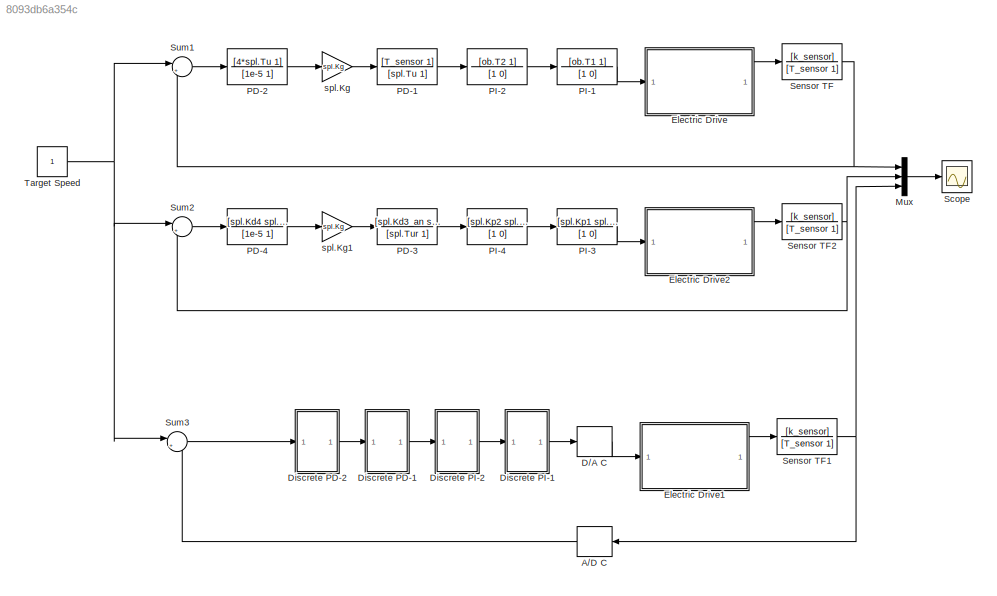
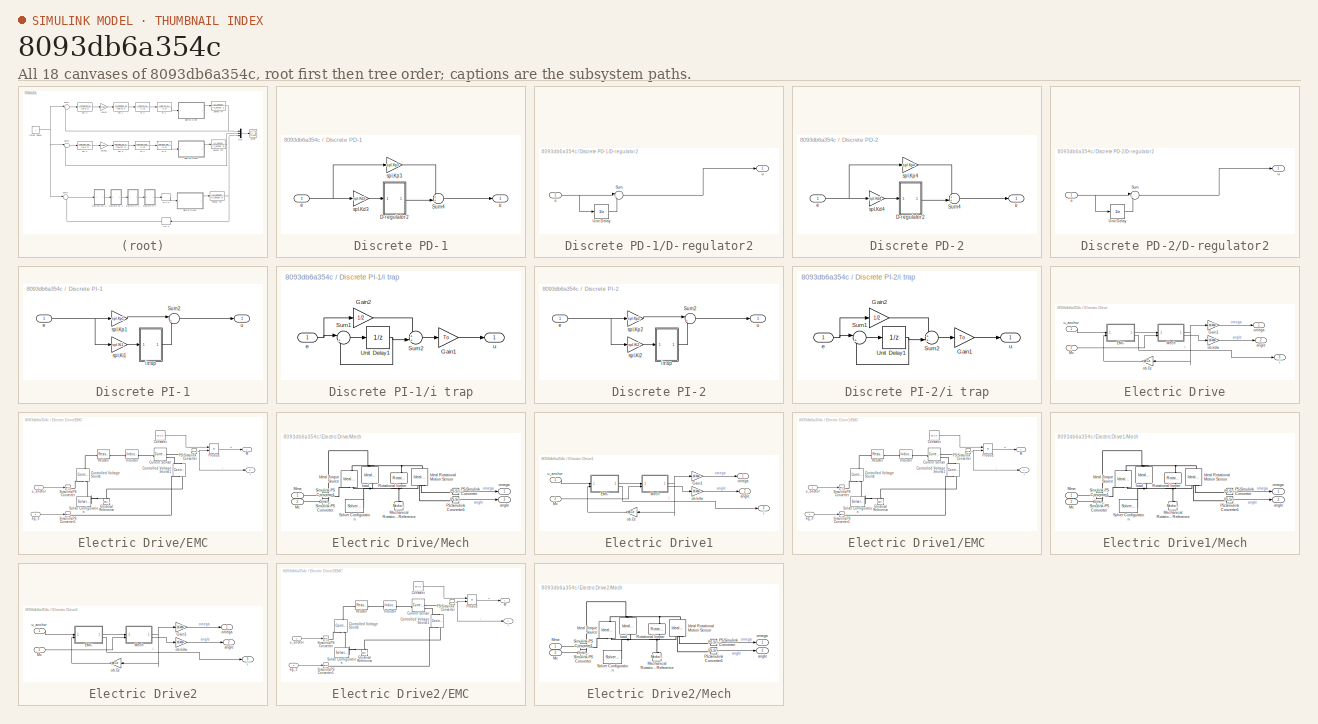
[diagram: thumbnail index - all 18 canvases of the model, root first then tree order]
MODEL slx_8093db6a354c
KIND model
CONFIG AbsTol = auto
CONFIG EnableMultiTasking = off
CONFIG FixedStep = To/100
CONFIG MaxStep = auto
CONFIG MinStep = auto
CONFIG RelTol = 1e-3
CONFIG SampleTimeConstraint = Unconstrained
CONFIG SolverName = ode3
CONFIG StartTime = 0.0
CONFIG StopTime = Tmdl
BLOCK [ZeroOrderHold] A//D C
  NameLocation = top
  SampleTime = To
BLOCK [ZeroOrderHold] D//A C
  SampleTime = To
BLOCK [SubSystem] Discrete PD-1
BLOCK [SubSystem] Discrete PD-1/D-regulator2
BLOCK [Sum] Discrete PD-1/D-regulator2/Sum
  Inputs = |+-
BLOCK [UnitDelay] Discrete PD-1/D-regulator2/Unit Delay
  HasFrameUpgradeWarning = on
  SampleTime = To
BLOCK [Inport] Discrete PD-1/D-regulator2/e
BLOCK [Outport] Discrete PD-1/D-regulator2/u
BLOCK [Sum] Discrete PD-1/Sum4
  Inputs = ++|
BLOCK [Inport] Discrete PD-1/e
BLOCK [Gain] Discrete PD-1/spl.Kd3
  Gain = spl.Kd3
BLOCK [Gain] Discrete PD-1/spl.Kp3
  Gain = spl.Kp3
BLOCK [Outport] Discrete PD-1/u
BLOCK [SubSystem] Discrete PD-2
BLOCK [SubSystem] Discrete PD-2/D-regulator2
BLOCK [Sum] Discrete PD-2/D-regulator2/Sum
  Inputs = |+-
BLOCK [UnitDelay] Discrete PD-2/D-regulator2/Unit Delay
  HasFrameUpgradeWarning = on
  SampleTime = To
BLOCK [Inport] Discrete PD-2/D-regulator2/e
BLOCK [Outport] Discrete PD-2/D-regulator2/u
BLOCK [Sum] Discrete PD-2/Sum4
  Inputs = ++|
BLOCK [Inport] Discrete PD-2/e
BLOCK [Gain] Discrete PD-2/spl.Kd4
  Gain = spl.Kd4
BLOCK [Gain] Discrete PD-2/spl.Kp4
  Gain = spl.Kp4
BLOCK [Outport] Discrete PD-2/u
BLOCK [SubSystem] Discrete PI-1
BLOCK [Sum] Discrete PI-1/Sum2
  Inputs = |++
BLOCK [Inport] Discrete PI-1/e
BLOCK [SubSystem] Discrete PI-1/i trap
BLOCK [Gain] Discrete PI-1/i trap/Gain1
  Gain = To
BLOCK [Gain] Discrete PI-1/i trap/Gain2
  Gain = 1/2
BLOCK [Sum] Discrete PI-1/i trap/Sum1
  Inputs = |++
BLOCK [Sum] Discrete PI-1/i trap/Sum2
  Inputs = ++|
BLOCK [UnitDelay] Discrete PI-1/i trap/Unit Delay1
  HasFrameUpgradeWarning = on
  SampleTime = To
BLOCK [Inport] Discrete PI-1/i trap/e
BLOCK [Outport] Discrete PI-1/i trap/u
BLOCK [Gain] Discrete PI-1/spl.Ki1
  Gain = spl.Ki1
BLOCK [Gain] Discrete PI-1/spl.Kp1
  Gain = spl.Kp1
BLOCK [Outport] Discrete PI-1/u
BLOCK [SubSystem] Discrete PI-2
BLOCK [Sum] Discrete PI-2/Sum2
  Inputs = |++
BLOCK [Inport] Discrete PI-2/e
BLOCK [SubSystem] Discrete PI-2/i trap
BLOCK [Gain] Discrete PI-2/i trap/Gain1
  Gain = To
BLOCK [Gain] Discrete PI-2/i trap/Gain2
  Gain = 1/2
BLOCK [Sum] Discrete PI-2/i trap/Sum1
  Inputs = |++
BLOCK [Sum] Discrete PI-2/i trap/Sum2
  Inputs = ++|
BLOCK [UnitDelay] Discrete PI-2/i trap/Unit Delay1
  HasFrameUpgradeWarning = on
  SampleTime = To
BLOCK [Inport] Discrete PI-2/i trap/e
BLOCK [Outport] Discrete PI-2/i trap/u
BLOCK [Gain] Discrete PI-2/spl.Ki2
  Gain = spl.Ki2
BLOCK [Gain] Discrete PI-2/spl.Kp2
  Gain = spl.Kp2
BLOCK [Outport] Discrete PI-2/u
BLOCK [SubSystem] Electric Drive
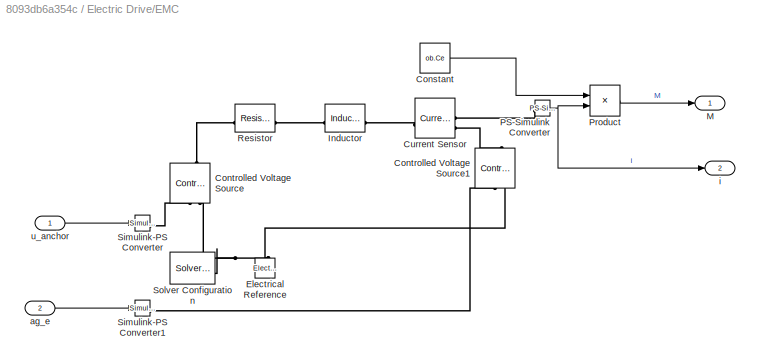
BLOCK [SubSystem] Electric Drive/EMC
BLOCK [Constant] Electric Drive/EMC/Constant
  Value = ob.Ce
BLOCK [Reference] Electric Drive/EMC/Controlled Voltage Source  REF=fl_lib/Electrical/Electrical Sources/Controlled Voltage
Source
  NameLocation = right
  SourceBlock = fl_lib/Electrical/Electrical Sources/Controlled Voltage\nSource
  SourceType = Controlled Voltage\nSource
BLOCK [Reference] Electric Drive/EMC/Controlled Voltage Source1  REF=fl_lib/Electrical/Electrical Sources/Controlled Voltage
Source
  NameLocation = right
  SourceBlock = fl_lib/Electrical/Electrical Sources/Controlled Voltage\nSource
  SourceType = Controlled Voltage\nSource
BLOCK [Reference] Electric Drive/EMC/Current Sensor  REF=fl_lib/Electrical/Electrical Sensors/Current Sensor
  SourceBlock = fl_lib/Electrical/Electrical Sensors/Current Sensor
  SourceType = Current Sensor
BLOCK [Reference] Electric Drive/EMC/Electrical Reference  REF=fl_lib/Electrical/Electrical Elements/Electrical Reference
  NameLocation = right
  SourceBlock = fl_lib/Electrical/Electrical Elements/Electrical Reference
  SourceType = Electrical Reference
BLOCK [Reference] Electric Drive/EMC/Inductor  REF=fl_lib/Electrical/Electrical Elements/Inductor
  SourceBlock = fl_lib/Electrical/Electrical Elements/Inductor
  SourceType = Inductor
BLOCK [Outport] Electric Drive/EMC/M
BLOCK [Reference] Electric Drive/EMC/PS-Simulink Converter  REF=nesl_utility/PS-Simulink
Converter
  SourceBlock = nesl_utility/PS-Simulink\nConverter
  SourceType = PS-Simulink\nConverter
BLOCK [Product] Electric Drive/EMC/Product
BLOCK [Reference] Electric Drive/EMC/Resistor  REF=fl_lib/Electrical/Electrical Elements/Resistor
  SourceBlock = fl_lib/Electrical/Electrical Elements/Resistor
  SourceType = Resistor
BLOCK [Reference] Electric Drive/EMC/Simulink-PS Converter  REF=nesl_utility/Simulink-PS
Converter
  SourceBlock = nesl_utility/Simulink-PS\nConverter
  SourceType = Simulink-PS\nConverter
BLOCK [Reference] Electric Drive/EMC/Simulink-PS Converter1  REF=nesl_utility/Simulink-PS
Converter
  SourceBlock = nesl_utility/Simulink-PS\nConverter
  SourceType = Simulink-PS\nConverter
BLOCK [Reference] Electric Drive/EMC/Solver Configuration  REF=nesl_utility/Solver
Configuration
  SourceBlock = nesl_utility/Solver\nConfiguration
  SourceType = Solver\nConfiguration
BLOCK [Inport] Electric Drive/EMC/ag_e
  Port = 2
BLOCK [Outport] Electric Drive/EMC/i
  Port = 2
BLOCK [Inport] Electric Drive/EMC/u_anchor
BLOCK [Gain] Electric Drive/Gain1
  Gain = ob.kdw
BLOCK [Inport] Electric Drive/Mc
  Port = 2
BLOCK [SubSystem] Electric Drive/Mech
BLOCK [Reference] Electric Drive/Mech/Ideal Rotational Motion Sensor  REF=fl_lib/Mechanical/Mechanical Sensors/Ideal Rotational
Motion Sensor
  NameLocation = left
  SourceBlock = fl_lib/Mechanical/Mechanical Sensors/Ideal Rotational\nMotion Sensor
  SourceType = Ideal Rotational\nMotion Sensor
BLOCK [Reference] Electric Drive/Mech/Ideal Torque Source  REF=fl_lib/Mechanical/Mechanical Sources/Ideal Torque Source
  NameLocation = right
  SourceBlock = fl_lib/Mechanical/Mechanical Sources/Ideal Torque Source
  SourceType = Ideal Torque Source
BLOCK [Inport] Electric Drive/Mech/Mc
  Port = 2
BLOCK [Reference] Electric Drive/Mech/Mechanical Rotational Reference  REF=fl_lib/Mechanical/Rotational Elements/Mechanical
Rotational Reference
  NameLocation = right
  SourceBlock = fl_lib/Mechanical/Rotational Elements/Mechanical\nRotational Reference
  SourceType = Mechanical\nRotational Reference
BLOCK [Inport] Electric Drive/Mech/Mme
BLOCK [Reference] Electric Drive/Mech/PS-Simulink Converter  REF=nesl_utility/PS-Simulink
Converter
  SourceBlock = nesl_utility/PS-Simulink\nConverter
  SourceType = PS-Simulink\nConverter
BLOCK [Reference] Electric Drive/Mech/PS-Simulink Converter1  REF=nesl_utility/PS-Simulink
Converter
  SourceBlock = nesl_utility/PS-Simulink\nConverter
  SourceType = PS-Simulink\nConverter
BLOCK [Reference] Electric Drive/Mech/Rotational Inerter  REF=fl_lib/Mechanical/Rotational Elements/Rotational Inerter
  NameLocation = left
  SourceBlock = fl_lib/Mechanical/Rotational Elements/Rotational Inerter
  SourceType = Rotational Inerter
BLOCK [Reference] Electric Drive/Mech/Simulink-PS Converter  REF=nesl_utility/Simulink-PS
Converter
  SourceBlock = nesl_utility/Simulink-PS\nConverter
  SourceType = Simulink-PS\nConverter
BLOCK [Reference] Electric Drive/Mech/Simulink-PS Converter1  REF=nesl_utility/Simulink-PS
Converter
  SourceBlock = nesl_utility/Simulink-PS\nConverter
  SourceType = Simulink-PS\nConverter
BLOCK [Reference] Electric Drive/Mech/Solver Configuration  REF=nesl_utility/Solver
Configuration
  SourceBlock = nesl_utility/Solver\nConfiguration
  SourceType = Solver\nConfiguration
BLOCK [Outport] Electric Drive/Mech/angle
  Port = 2
BLOCK [Reference] Electric Drive/Mech/load  REF=fl_lib/Mechanical/Mechanical Sources/Ideal Torque Source
  SourceBlock = fl_lib/Mechanical/Mechanical Sources/Ideal Torque Source
  SourceType = Ideal Torque Source
BLOCK [Outport] Electric Drive/Mech/omega
BLOCK [Outport] Electric Drive/angle
  Port = 2
BLOCK [Outport] Electric Drive/i
  Port = 3
BLOCK [Gain] Electric Drive/ob.Ce
  Gain = ob.Ce
BLOCK [Gain] Electric Drive/ob.kdw
  Gain = ob.kdw
  NameLocation = top
BLOCK [Outport] Electric Drive/omega
BLOCK [Inport] Electric Drive/u_anchor
BLOCK [SubSystem] Electric Drive1
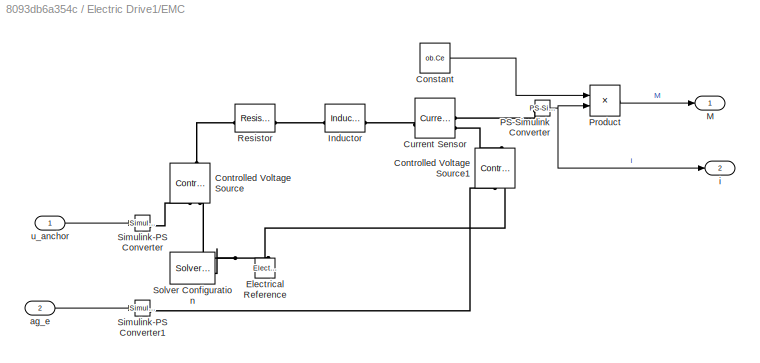
BLOCK [SubSystem] Electric Drive1/EMC
BLOCK [Constant] Electric Drive1/EMC/Constant
  Value = ob.Ce
BLOCK [Reference] Electric Drive1/EMC/Controlled Voltage Source  REF=fl_lib/Electrical/Electrical Sources/Controlled Voltage
Source
  NameLocation = right
  SourceBlock = fl_lib/Electrical/Electrical Sources/Controlled Voltage\nSource
  SourceType = Controlled Voltage\nSource
BLOCK [Reference] Electric Drive1/EMC/Controlled Voltage Source1  REF=fl_lib/Electrical/Electrical Sources/Controlled Voltage
Source
  NameLocation = right
  SourceBlock = fl_lib/Electrical/Electrical Sources/Controlled Voltage\nSource
  SourceType = Controlled Voltage\nSource
BLOCK [Reference] Electric Drive1/EMC/Current Sensor  REF=fl_lib/Electrical/Electrical Sensors/Current Sensor
  SourceBlock = fl_lib/Electrical/Electrical Sensors/Current Sensor
  SourceType = Current Sensor
BLOCK [Reference] Electric Drive1/EMC/Electrical Reference  REF=fl_lib/Electrical/Electrical Elements/Electrical Reference
  NameLocation = right
  SourceBlock = fl_lib/Electrical/Electrical Elements/Electrical Reference
  SourceType = Electrical Reference
BLOCK [Reference] Electric Drive1/EMC/Inductor  REF=fl_lib/Electrical/Electrical Elements/Inductor
  SourceBlock = fl_lib/Electrical/Electrical Elements/Inductor
  SourceType = Inductor
BLOCK [Outport] Electric Drive1/EMC/M
BLOCK [Reference] Electric Drive1/EMC/PS-Simulink Converter  REF=nesl_utility/PS-Simulink
Converter
  SourceBlock = nesl_utility/PS-Simulink\nConverter
  SourceType = PS-Simulink\nConverter
BLOCK [Product] Electric Drive1/EMC/Product
BLOCK [Reference] Electric Drive1/EMC/Resistor  REF=fl_lib/Electrical/Electrical Elements/Resistor
  SourceBlock = fl_lib/Electrical/Electrical Elements/Resistor
  SourceType = Resistor
BLOCK [Reference] Electric Drive1/EMC/Simulink-PS Converter  REF=nesl_utility/Simulink-PS
Converter
  SourceBlock = nesl_utility/Simulink-PS\nConverter
  SourceType = Simulink-PS\nConverter
BLOCK [Reference] Electric Drive1/EMC/Simulink-PS Converter1  REF=nesl_utility/Simulink-PS
Converter
  SourceBlock = nesl_utility/Simulink-PS\nConverter
  SourceType = Simulink-PS\nConverter
BLOCK [Reference] Electric Drive1/EMC/Solver Configuration  REF=nesl_utility/Solver
Configuration
  SourceBlock = nesl_utility/Solver\nConfiguration
  SourceType = Solver\nConfiguration
BLOCK [Inport] Electric Drive1/EMC/ag_e
  Port = 2
BLOCK [Outport] Electric Drive1/EMC/i
  Port = 2
BLOCK [Inport] Electric Drive1/EMC/u_anchor
BLOCK [Gain] Electric Drive1/Gain1
  Gain = ob.kdw
BLOCK [Inport] Electric Drive1/Mc
  Port = 2
BLOCK [SubSystem] Electric Drive1/Mech
BLOCK [Reference] Electric Drive1/Mech/Ideal Rotational Motion Sensor  REF=fl_lib/Mechanical/Mechanical Sensors/Ideal Rotational
Motion Sensor
  NameLocation = left
  SourceBlock = fl_lib/Mechanical/Mechanical Sensors/Ideal Rotational\nMotion Sensor
  SourceType = Ideal Rotational\nMotion Sensor
BLOCK [Reference] Electric Drive1/Mech/Ideal Torque Source  REF=fl_lib/Mechanical/Mechanical Sources/Ideal Torque Source
  NameLocation = right
  SourceBlock = fl_lib/Mechanical/Mechanical Sources/Ideal Torque Source
  SourceType = Ideal Torque Source
BLOCK [Inport] Electric Drive1/Mech/Mc
  Port = 2
BLOCK [Reference] Electric Drive1/Mech/Mechanical Rotational Reference  REF=fl_lib/Mechanical/Rotational Elements/Mechanical
Rotational Reference
  NameLocation = right
  SourceBlock = fl_lib/Mechanical/Rotational Elements/Mechanical\nRotational Reference
  SourceType = Mechanical\nRotational Reference
BLOCK [Inport] Electric Drive1/Mech/Mme
BLOCK [Reference] Electric Drive1/Mech/PS-Simulink Converter  REF=nesl_utility/PS-Simulink
Converter
  SourceBlock = nesl_utility/PS-Simulink\nConverter
  SourceType = PS-Simulink\nConverter
BLOCK [Reference] Electric Drive1/Mech/PS-Simulink Converter1  REF=nesl_utility/PS-Simulink
Converter
  SourceBlock = nesl_utility/PS-Simulink\nConverter
  SourceType = PS-Simulink\nConverter
BLOCK [Reference] Electric Drive1/Mech/Rotational Inerter  REF=fl_lib/Mechanical/Rotational Elements/Rotational Inerter
  NameLocation = left
  SourceBlock = fl_lib/Mechanical/Rotational Elements/Rotational Inerter
  SourceType = Rotational Inerter
BLOCK [Reference] Electric Drive1/Mech/Simulink-PS Converter  REF=nesl_utility/Simulink-PS
Converter
  SourceBlock = nesl_utility/Simulink-PS\nConverter
  SourceType = Simulink-PS\nConverter
BLOCK [Reference] Electric Drive1/Mech/Simulink-PS Converter1  REF=nesl_utility/Simulink-PS
Converter
  SourceBlock = nesl_utility/Simulink-PS\nConverter
  SourceType = Simulink-PS\nConverter
BLOCK [Reference] Electric Drive1/Mech/Solver Configuration  REF=nesl_utility/Solver
Configuration
  SourceBlock = nesl_utility/Solver\nConfiguration
  SourceType = Solver\nConfiguration
BLOCK [Outport] Electric Drive1/Mech/angle
  Port = 2
BLOCK [Reference] Electric Drive1/Mech/load  REF=fl_lib/Mechanical/Mechanical Sources/Ideal Torque Source
  SourceBlock = fl_lib/Mechanical/Mechanical Sources/Ideal Torque Source
  SourceType = Ideal Torque Source
BLOCK [Outport] Electric Drive1/Mech/omega
BLOCK [Outport] Electric Drive1/angle
  Port = 2
BLOCK [Outport] Electric Drive1/i
  Port = 3
BLOCK [Gain] Electric Drive1/ob.Ce
  Gain = ob.Ce
BLOCK [Gain] Electric Drive1/ob.kdw
  Gain = ob.kdw
  NameLocation = top
BLOCK [Outport] Electric Drive1/omega
BLOCK [Inport] Electric Drive1/u_anchor
BLOCK [SubSystem] Electric Drive2
  Commented = on
BLOCK [SubSystem] Electric Drive2/EMC
BLOCK [Constant] Electric Drive2/EMC/Constant
  Value = ob.Ce
BLOCK [Reference] Electric Drive2/EMC/Controlled Voltage Source  REF=fl_lib/Electrical/Electrical Sources/Controlled Voltage
Source
  NameLocation = right
  SourceBlock = fl_lib/Electrical/Electrical Sources/Controlled Voltage\nSource
  SourceType = Controlled Voltage\nSource
BLOCK [Reference] Electric Drive2/EMC/Controlled Voltage Source1  REF=fl_lib/Electrical/Electrical Sources/Controlled Voltage
Source
  NameLocation = right
  SourceBlock = fl_lib/Electrical/Electrical Sources/Controlled Voltage\nSource
  SourceType = Controlled Voltage\nSource
BLOCK [Reference] Electric Drive2/EMC/Current Sensor  REF=fl_lib/Electrical/Electrical Sensors/Current Sensor
  SourceBlock = fl_lib/Electrical/Electrical Sensors/Current Sensor
  SourceType = Current Sensor
BLOCK [Reference] Electric Drive2/EMC/Electrical Reference  REF=fl_lib/Electrical/Electrical Elements/Electrical Reference
  NameLocation = right
  SourceBlock = fl_lib/Electrical/Electrical Elements/Electrical Reference
  SourceType = Electrical Reference
BLOCK [Reference] Electric Drive2/EMC/Inductor  REF=fl_lib/Electrical/Electrical Elements/Inductor
  SourceBlock = fl_lib/Electrical/Electrical Elements/Inductor
  SourceType = Inductor
BLOCK [Outport] Electric Drive2/EMC/M
BLOCK [Reference] Electric Drive2/EMC/PS-Simulink Converter  REF=nesl_utility/PS-Simulink
Converter
  SourceBlock = nesl_utility/PS-Simulink\nConverter
  SourceType = PS-Simulink\nConverter
BLOCK [Product] Electric Drive2/EMC/Product
BLOCK [Reference] Electric Drive2/EMC/Resistor  REF=fl_lib/Electrical/Electrical Elements/Resistor
  SourceBlock = fl_lib/Electrical/Electrical Elements/Resistor
  SourceType = Resistor
BLOCK [Reference] Electric Drive2/EMC/Simulink-PS Converter  REF=nesl_utility/Simulink-PS
Converter
  SourceBlock = nesl_utility/Simulink-PS\nConverter
  SourceType = Simulink-PS\nConverter
BLOCK [Reference] Electric Drive2/EMC/Simulink-PS Converter1  REF=nesl_utility/Simulink-PS
Converter
  SourceBlock = nesl_utility/Simulink-PS\nConverter
  SourceType = Simulink-PS\nConverter
BLOCK [Reference] Electric Drive2/EMC/Solver Configuration  REF=nesl_utility/Solver
Configuration
  SourceBlock = nesl_utility/Solver\nConfiguration
  SourceType = Solver\nConfiguration
BLOCK [Inport] Electric Drive2/EMC/ag_e
  Port = 2
BLOCK [Outport] Electric Drive2/EMC/i
  Port = 2
BLOCK [Inport] Electric Drive2/EMC/u_anchor
BLOCK [Gain] Electric Drive2/Gain1
  Gain = ob.kdw
BLOCK [Inport] Electric Drive2/Mc
  Port = 2
BLOCK [SubSystem] Electric Drive2/Mech
BLOCK [Reference] Electric Drive2/Mech/Ideal Rotational Motion Sensor  REF=fl_lib/Mechanical/Mechanical Sensors/Ideal Rotational
Motion Sensor
  NameLocation = left
  SourceBlock = fl_lib/Mechanical/Mechanical Sensors/Ideal Rotational\nMotion Sensor
  SourceType = Ideal Rotational\nMotion Sensor
BLOCK [Reference] Electric Drive2/Mech/Ideal Torque Source  REF=fl_lib/Mechanical/Mechanical Sources/Ideal Torque Source
  NameLocation = right
  SourceBlock = fl_lib/Mechanical/Mechanical Sources/Ideal Torque Source
  SourceType = Ideal Torque Source
BLOCK [Inport] Electric Drive2/Mech/Mc
  Port = 2
BLOCK [Reference] Electric Drive2/Mech/Mechanical Rotational Reference  REF=fl_lib/Mechanical/Rotational Elements/Mechanical
Rotational Reference
  NameLocation = right
  SourceBlock = fl_lib/Mechanical/Rotational Elements/Mechanical\nRotational Reference
  SourceType = Mechanical\nRotational Reference
BLOCK [Inport] Electric Drive2/Mech/Mme
BLOCK [Reference] Electric Drive2/Mech/PS-Simulink Converter  REF=nesl_utility/PS-Simulink
Converter
  SourceBlock = nesl_utility/PS-Simulink\nConverter
  SourceType = PS-Simulink\nConverter
BLOCK [Reference] Electric Drive2/Mech/PS-Simulink Converter1  REF=nesl_utility/PS-Simulink
Converter
  SourceBlock = nesl_utility/PS-Simulink\nConverter
  SourceType = PS-Simulink\nConverter
BLOCK [Reference] Electric Drive2/Mech/Rotational Inerter  REF=fl_lib/Mechanical/Rotational Elements/Rotational Inerter
  NameLocation = left
  SourceBlock = fl_lib/Mechanical/Rotational Elements/Rotational Inerter
  SourceType = Rotational Inerter
BLOCK [Reference] Electric Drive2/Mech/Simulink-PS Converter  REF=nesl_utility/Simulink-PS
Converter
  SourceBlock = nesl_utility/Simulink-PS\nConverter
  SourceType = Simulink-PS\nConverter
BLOCK [Reference] Electric Drive2/Mech/Simulink-PS Converter1  REF=nesl_utility/Simulink-PS
Converter
  SourceBlock = nesl_utility/Simulink-PS\nConverter
  SourceType = Simulink-PS\nConverter
BLOCK [Reference] Electric Drive2/Mech/Solver Configuration  REF=nesl_utility/Solver
Configuration
  SourceBlock = nesl_utility/Solver\nConfiguration
  SourceType = Solver\nConfiguration
BLOCK [Outport] Electric Drive2/Mech/angle
  Port = 2
BLOCK [Reference] Electric Drive2/Mech/load  REF=fl_lib/Mechanical/Mechanical Sources/Ideal Torque Source
  SourceBlock = fl_lib/Mechanical/Mechanical Sources/Ideal Torque Source
  SourceType = Ideal Torque Source
BLOCK [Outport] Electric Drive2/Mech/omega
BLOCK [Outport] Electric Drive2/angle
  Port = 2
BLOCK [Outport] Electric Drive2/i
  Port = 3
BLOCK [Gain] Electric Drive2/ob.Ce
  Gain = ob.Ce
BLOCK [Gain] Electric Drive2/ob.kdw
  Gain = ob.kdw
  NameLocation = top
BLOCK [Outport] Electric Drive2/omega
BLOCK [Inport] Electric Drive2/u_anchor
BLOCK [Mux] Mux
  DisplayOption = bar
  Inputs = 3
BLOCK [TransferFcn] PD-1
  Denominator = [spl.Tu 1]
  Numerator = [T_sensor 1]
BLOCK [TransferFcn] PD-2
  Denominator = [1e-5 1]
  Numerator = [4*spl.Tu 1]
BLOCK [TransferFcn] PD-3
  Commented = on
  Denominator = [spl.Tur 1]
  Numerator = [spl.Kd3_an spl.Kp3]
BLOCK [TransferFcn] PD-4
  Commented = on
  Denominator = [1e-5 1]
  Numerator = [spl.Kd4 spl.Kp4]
BLOCK [TransferFcn] PI-1
  Denominator = [1 0]
  Numerator = [ob.T1 1]
BLOCK [TransferFcn] PI-2
  Denominator = [1 0]
  Numerator = [ob.T2 1]
BLOCK [TransferFcn] PI-3
  Commented = on
  Denominator = [1 0]
  Numerator = [spl.Kp1 spl.Ki1]
BLOCK [TransferFcn] PI-4
  Commented = on
  Denominator = [1 0]
  Numerator = [spl.Kp2 spl.Ki2]
BLOCK [Scope] Scope
  Floating = off
  NumInputPorts = 1
  ScopeSpecificationString = Simulink.scopes.TimeScopeBlockCfg('CurrentConfiguration', extmgr.ConfigurationSet(extmgr.Configuration('Core','General UI',true),extmgr.Configuration('Core','Source UI',true),extmgr.Configuration('Sources','WiredSimulink',true,'DataLogging',true,'DataLoggingVariableName','w','DataLoggingSaveFormat','Array'),extmgr.Configuration('Visuals','Time Domain',true,'SerializedDisplays',{struct('MinYLimReal...<+2154ch>
BLOCK [TransferFcn] Sensor TF
  Denominator = [T_sensor 1]
  Numerator = [k_sensor]
BLOCK [TransferFcn] Sensor TF1
  Denominator = [T_sensor 1]
  Numerator = [k_sensor]
BLOCK [TransferFcn] Sensor TF2
  Commented = on
  Denominator = [T_sensor 1]
  Numerator = [k_sensor]
BLOCK [Sum] Sum1
  Inputs = |+-
BLOCK [Sum] Sum2
  Commented = on
  Inputs = |+-
BLOCK [Sum] Sum3
  Inputs = |+-
BLOCK [Constant] Target Speed
BLOCK [Gain] spl.Kg
  Gain = spl.Kg
BLOCK [Gain] spl.Kg1
  Commented = on
  Gain = spl.Kg
LINE A//D C:1 -> Sum3:2
LINE D//A C:1 -> Electric Drive1:1
LINE Discrete PD-1/D-regulator2/Sum:1 -> Discrete PD-1/D-regulator2/u:1
LINE Discrete PD-1/D-regulator2/Unit Delay:1 -> Discrete PD-1/D-regulator2/Sum:2
NET Discrete PD-1/D-regulator2/e:1 -> Discrete PD-1/D-regulator2/Sum:1, Discrete PD-1/D-regulator2/Unit Delay:1
LINE Discrete PD-1/D-regulator2:1 -> Discrete PD-1/Sum4:2
LINE Discrete PD-1/Sum4:1 -> Discrete PD-1/u:1
NET Discrete PD-1/e:1 -> Discrete PD-1/spl.Kd3:1, Discrete PD-1/spl.Kp3:1
LINE Discrete PD-1/spl.Kd3:1 -> Discrete PD-1/D-regulator2:1
LINE Discrete PD-1/spl.Kp3:1 -> Discrete PD-1/Sum4:1
LINE Discrete PD-1:1 -> Discrete PI-2:1
LINE Discrete PD-2/D-regulator2/Sum:1 -> Discrete PD-2/D-regulator2/u:1
LINE Discrete PD-2/D-regulator2/Unit Delay:1 -> Discrete PD-2/D-regulator2/Sum:2
NET Discrete PD-2/D-regulator2/e:1 -> Discrete PD-2/D-regulator2/Sum:1, Discrete PD-2/D-regulator2/Unit Delay:1
LINE Discrete PD-2/D-regulator2:1 -> Discrete PD-2/Sum4:2
LINE Discrete PD-2/Sum4:1 -> Discrete PD-2/u:1
NET Discrete PD-2/e:1 -> Discrete PD-2/spl.Kd4:1, Discrete PD-2/spl.Kp4:1
LINE Discrete PD-2/spl.Kd4:1 -> Discrete PD-2/D-regulator2:1
LINE Discrete PD-2/spl.Kp4:1 -> Discrete PD-2/Sum4:1
LINE Discrete PD-2:1 -> Discrete PD-1:1
LINE Discrete PI-1/Sum2:1 -> Discrete PI-1/u:1
NET Discrete PI-1/e:1 -> Discrete PI-1/spl.Ki1:1, Discrete PI-1/spl.Kp1:1
LINE Discrete PI-1/i trap/Gain1:1 -> Discrete PI-1/i trap/u:1
LINE Discrete PI-1/i trap/Gain2:1 -> Discrete PI-1/i trap/Sum2:1
LINE Discrete PI-1/i trap/Sum1:1 -> Discrete PI-1/i trap/Unit Delay1:1
LINE Discrete PI-1/i trap/Sum2:1 -> Discrete PI-1/i trap/Gain1:1
NET Discrete PI-1/i trap/Unit Delay1:1 -> Discrete PI-1/i trap/Sum1:2, Discrete PI-1/i trap/Sum2:2
NET Discrete PI-1/i trap/e:1 -> Discrete PI-1/i trap/Gain2:1, Discrete PI-1/i trap/Sum1:1
LINE Discrete PI-1/i trap:1 -> Discrete PI-1/Sum2:2
LINE Discrete PI-1/spl.Ki1:1 -> Discrete PI-1/i trap:1
LINE Discrete PI-1/spl.Kp1:1 -> Discrete PI-1/Sum2:1
LINE Discrete PI-1:1 -> D//A C:1
LINE Discrete PI-2/Sum2:1 -> Discrete PI-2/u:1
NET Discrete PI-2/e:1 -> Discrete PI-2/spl.Ki2:1, Discrete PI-2/spl.Kp2:1
LINE Discrete PI-2/i trap/Gain1:1 -> Discrete PI-2/i trap/u:1
LINE Discrete PI-2/i trap/Gain2:1 -> Discrete PI-2/i trap/Sum2:1
LINE Discrete PI-2/i trap/Sum1:1 -> Discrete PI-2/i trap/Unit Delay1:1
LINE Discrete PI-2/i trap/Sum2:1 -> Discrete PI-2/i trap/Gain1:1
NET Discrete PI-2/i trap/Unit Delay1:1 -> Discrete PI-2/i trap/Sum1:2, Discrete PI-2/i trap/Sum2:2
NET Discrete PI-2/i trap/e:1 -> Discrete PI-2/i trap/Gain2:1, Discrete PI-2/i trap/Sum1:1
LINE Discrete PI-2/i trap:1 -> Discrete PI-2/Sum2:2
LINE Discrete PI-2/spl.Ki2:1 -> Discrete PI-2/i trap:1
LINE Discrete PI-2/spl.Kp2:1 -> Discrete PI-2/Sum2:1
LINE Discrete PI-2:1 -> Discrete PI-1:1
LINE Electric Drive/EMC/Constant:1 -> Electric Drive/EMC/Product:1
NET Electric Drive/EMC/PS-Simulink Converter:1 -> Electric Drive/EMC/Product:2, Electric Drive/EMC/i:1
LINE Electric Drive/EMC/Product:1 -> Electric Drive/EMC/M:1
LINE Electric Drive/EMC/ag_e:1 -> Electric Drive/EMC/Simulink-PS Converter1:1
LINE Electric Drive/EMC/u_anchor:1 -> Electric Drive/EMC/Simulink-PS Converter:1
LINE Electric Drive/EMC:1 -> Electric Drive/Mech:1
LINE Electric Drive/EMC:2 -> Electric Drive/i:1
LINE Electric Drive/Gain1:1 -> Electric Drive/omega:1
LINE Electric Drive/Mc:1 -> Electric Drive/Mech:2
LINE Electric Drive/Mech/Mc:1 -> Electric Drive/Mech/Simulink-PS Converter1:1
LINE Electric Drive/Mech/Mme:1 -> Electric Drive/Mech/Simulink-PS Converter:1
LINE Electric Drive/Mech/PS-Simulink Converter1:1 -> Electric Drive/Mech/angle:1
LINE Electric Drive/Mech/PS-Simulink Converter:1 -> Electric Drive/Mech/omega:1
NET Electric Drive/Mech:1 -> Electric Drive/Gain1:1, Electric Drive/ob.Ce:1
LINE Electric Drive/Mech:2 -> Electric Drive/ob.kdw:1
LINE Electric Drive/ob.Ce:1 -> Electric Drive/EMC:2
LINE Electric Drive/ob.kdw:1 -> Electric Drive/angle:1
LINE Electric Drive/u_anchor:1 -> Electric Drive/EMC:1
LINE Electric Drive1/EMC/Constant:1 -> Electric Drive1/EMC/Product:1
NET Electric Drive1/EMC/PS-Simulink Converter:1 -> Electric Drive1/EMC/Product:2, Electric Drive1/EMC/i:1
LINE Electric Drive1/EMC/Product:1 -> Electric Drive1/EMC/M:1
LINE Electric Drive1/EMC/ag_e:1 -> Electric Drive1/EMC/Simulink-PS Converter1:1
LINE Electric Drive1/EMC/u_anchor:1 -> Electric Drive1/EMC/Simulink-PS Converter:1
LINE Electric Drive1/EMC:1 -> Electric Drive1/Mech:1
LINE Electric Drive1/EMC:2 -> Electric Drive1/i:1
LINE Electric Drive1/Gain1:1 -> Electric Drive1/omega:1
LINE Electric Drive1/Mc:1 -> Electric Drive1/Mech:2
LINE Electric Drive1/Mech/Mc:1 -> Electric Drive1/Mech/Simulink-PS Converter1:1
LINE Electric Drive1/Mech/Mme:1 -> Electric Drive1/Mech/Simulink-PS Converter:1
LINE Electric Drive1/Mech/PS-Simulink Converter1:1 -> Electric Drive1/Mech/angle:1
LINE Electric Drive1/Mech/PS-Simulink Converter:1 -> Electric Drive1/Mech/omega:1
NET Electric Drive1/Mech:1 -> Electric Drive1/Gain1:1, Electric Drive1/ob.Ce:1
LINE Electric Drive1/Mech:2 -> Electric Drive1/ob.kdw:1
LINE Electric Drive1/ob.Ce:1 -> Electric Drive1/EMC:2
LINE Electric Drive1/ob.kdw:1 -> Electric Drive1/angle:1
LINE Electric Drive1/u_anchor:1 -> Electric Drive1/EMC:1
LINE Electric Drive1:1 -> Sensor TF1:1
LINE Electric Drive2/EMC/Constant:1 -> Electric Drive2/EMC/Product:1
NET Electric Drive2/EMC/PS-Simulink Converter:1 -> Electric Drive2/EMC/Product:2, Electric Drive2/EMC/i:1
LINE Electric Drive2/EMC/Product:1 -> Electric Drive2/EMC/M:1
LINE Electric Drive2/EMC/ag_e:1 -> Electric Drive2/EMC/Simulink-PS Converter1:1
LINE Electric Drive2/EMC/u_anchor:1 -> Electric Drive2/EMC/Simulink-PS Converter:1
LINE Electric Drive2/EMC:1 -> Electric Drive2/Mech:1
LINE Electric Drive2/EMC:2 -> Electric Drive2/i:1
LINE Electric Drive2/Gain1:1 -> Electric Drive2/omega:1
LINE Electric Drive2/Mc:1 -> Electric Drive2/Mech:2
LINE Electric Drive2/Mech/Mc:1 -> Electric Drive2/Mech/Simulink-PS Converter1:1
LINE Electric Drive2/Mech/Mme:1 -> Electric Drive2/Mech/Simulink-PS Converter:1
LINE Electric Drive2/Mech/PS-Simulink Converter1:1 -> Electric Drive2/Mech/angle:1
LINE Electric Drive2/Mech/PS-Simulink Converter:1 -> Electric Drive2/Mech/omega:1
NET Electric Drive2/Mech:1 -> Electric Drive2/Gain1:1, Electric Drive2/ob.Ce:1
LINE Electric Drive2/Mech:2 -> Electric Drive2/ob.kdw:1
LINE Electric Drive2/ob.Ce:1 -> Electric Drive2/EMC:2
LINE Electric Drive2/ob.kdw:1 -> Electric Drive2/angle:1
LINE Electric Drive2/u_anchor:1 -> Electric Drive2/EMC:1
LINE Electric Drive2:1 -> Sensor TF2:1
LINE Electric Drive:1 -> Sensor TF:1
LINE Mux:1 -> Scope:1
LINE PD-1:1 -> PI-2:1
LINE PD-2:1 -> spl.Kg:1
LINE PD-3:1 -> PI-4:1
LINE PD-4:1 -> spl.Kg1:1
LINE PI-1:1 -> Electric Drive:1
LINE PI-2:1 -> PI-1:1
LINE PI-3:1 -> Electric Drive2:1
LINE PI-4:1 -> PI-3:1
NET Sensor TF1:1 -> A//D C:1, Mux:3
NET Sensor TF2:1 -> Mux:2, Sum2:2
NET Sensor TF:1 -> Mux:1, Sum1:2
LINE Sum1:1 -> PD-2:1
LINE Sum2:1 -> PD-4:1
LINE Sum3:1 -> Discrete PD-2:1
NET Target Speed:1 -> Sum1:1, Sum2:1, Sum3:1
LINE spl.Kg1:1 -> PD-3:1
LINE spl.Kg:1 -> PD-1:1
PLINE Electric Drive/EMC/Controlled Voltage Source1:LConn1 -- Electric Drive/EMC/Current Sensor:RConn2
PLINE Electric Drive/EMC/Controlled Voltage Source1:RConn1 -- Electric Drive/EMC/Simulink-PS Converter1:RConn1
PNET net1: Electric Drive/EMC/Controlled Voltage Source1:RConn2 -- Electric Drive/EMC/Controlled Voltage Source:RConn2 -- Electric Drive/EMC/Electrical Reference:LConn1 -- Electric Drive/EMC/Solver Configuration:RConn1
PLINE Electric Drive/EMC/Controlled Voltage Source:LConn1 -- Electric Drive/EMC/Resistor:LConn1
PLINE Electric Drive/EMC/Controlled Voltage Source:RConn1 -- Electric Drive/EMC/Simulink-PS Converter:RConn1
PLINE Electric Drive/EMC/Current Sensor:LConn1 -- Electric Drive/EMC/Inductor:RConn1
PLINE Electric Drive/EMC/Current Sensor:RConn1 -- Electric Drive/EMC/PS-Simulink Converter:LConn1
PLINE Electric Drive/EMC/Inductor:LConn1 -- Electric Drive/EMC/Resistor:RConn1
PNET net2: Electric Drive/Mech/Ideal Rotational Motion Sensor:LConn1 -- Electric Drive/Mech/Ideal Torque Source:LConn1 -- Electric Drive/Mech/Rotational Inerter:LConn1 -- Electric Drive/Mech/load:RConn2
PNET net3: Electric Drive/Mech/Ideal Rotational Motion Sensor:RConn1 -- Electric Drive/Mech/Ideal Torque Source:RConn2 -- Electric Drive/Mech/Mechanical Rotational Reference:LConn1 -- Electric Drive/Mech/Rotational Inerter:RConn1 -- Electric Drive/Mech/Solver Configuration:RConn1 -- Electric Drive/Mech/load:LConn1
PLINE Electric Drive/Mech/Ideal Rotational Motion Sensor:RConn2 -- Electric Drive/Mech/PS-Simulink Converter:LConn1
PLINE Electric Drive/Mech/Ideal Rotational Motion Sensor:RConn3 -- Electric Drive/Mech/PS-Simulink Converter1:LConn1
PLINE Electric Drive/Mech/Ideal Torque Source:RConn1 -- Electric Drive/Mech/Simulink-PS Converter:RConn1
PLINE Electric Drive/Mech/Simulink-PS Converter1:RConn1 -- Electric Drive/Mech/load:RConn1
PLINE Electric Drive1/EMC/Controlled Voltage Source1:LConn1 -- Electric Drive1/EMC/Current Sensor:RConn2
PLINE Electric Drive1/EMC/Controlled Voltage Source1:RConn1 -- Electric Drive1/EMC/Simulink-PS Converter1:RConn1
PNET net4: Electric Drive1/EMC/Controlled Voltage Source1:RConn2 -- Electric Drive1/EMC/Controlled Voltage Source:RConn2 -- Electric Drive1/EMC/Electrical Reference:LConn1 -- Electric Drive1/EMC/Solver Configuration:RConn1
PLINE Electric Drive1/EMC/Controlled Voltage Source:LConn1 -- Electric Drive1/EMC/Resistor:LConn1
PLINE Electric Drive1/EMC/Controlled Voltage Source:RConn1 -- Electric Drive1/EMC/Simulink-PS Converter:RConn1
PLINE Electric Drive1/EMC/Current Sensor:LConn1 -- Electric Drive1/EMC/Inductor:RConn1
PLINE Electric Drive1/EMC/Current Sensor:RConn1 -- Electric Drive1/EMC/PS-Simulink Converter:LConn1
PLINE Electric Drive1/EMC/Inductor:LConn1 -- Electric Drive1/EMC/Resistor:RConn1
PNET net5: Electric Drive1/Mech/Ideal Rotational Motion Sensor:LConn1 -- Electric Drive1/Mech/Ideal Torque Source:LConn1 -- Electric Drive1/Mech/Rotational Inerter:LConn1 -- Electric Drive1/Mech/load:RConn2
PNET net6: Electric Drive1/Mech/Ideal Rotational Motion Sensor:RConn1 -- Electric Drive1/Mech/Ideal Torque Source:RConn2 -- Electric Drive1/Mech/Mechanical Rotational Reference:LConn1 -- Electric Drive1/Mech/Rotational Inerter:RConn1 -- Electric Drive1/Mech/Solver Configuration:RConn1 -- Electric Drive1/Mech/load:LConn1
PLINE Electric Drive1/Mech/Ideal Rotational Motion Sensor:RConn2 -- Electric Drive1/Mech/PS-Simulink Converter:LConn1
PLINE Electric Drive1/Mech/Ideal Rotational Motion Sensor:RConn3 -- Electric Drive1/Mech/PS-Simulink Converter1:LConn1
PLINE Electric Drive1/Mech/Ideal Torque Source:RConn1 -- Electric Drive1/Mech/Simulink-PS Converter:RConn1
PLINE Electric Drive1/Mech/Simulink-PS Converter1:RConn1 -- Electric Drive1/Mech/load:RConn1
PLINE Electric Drive2/EMC/Controlled Voltage Source1:LConn1 -- Electric Drive2/EMC/Current Sensor:RConn2
PLINE Electric Drive2/EMC/Controlled Voltage Source1:RConn1 -- Electric Drive2/EMC/Simulink-PS Converter1:RConn1
PNET net7: Electric Drive2/EMC/Controlled Voltage Source1:RConn2 -- Electric Drive2/EMC/Controlled Voltage Source:RConn2 -- Electric Drive2/EMC/Electrical Reference:LConn1 -- Electric Drive2/EMC/Solver Configuration:RConn1
PLINE Electric Drive2/EMC/Controlled Voltage Source:LConn1 -- Electric Drive2/EMC/Resistor:LConn1
PLINE Electric Drive2/EMC/Controlled Voltage Source:RConn1 -- Electric Drive2/EMC/Simulink-PS Converter:RConn1
PLINE Electric Drive2/EMC/Current Sensor:LConn1 -- Electric Drive2/EMC/Inductor:RConn1
PLINE Electric Drive2/EMC/Current Sensor:RConn1 -- Electric Drive2/EMC/PS-Simulink Converter:LConn1
PLINE Electric Drive2/EMC/Inductor:LConn1 -- Electric Drive2/EMC/Resistor:RConn1
PNET net8: Electric Drive2/Mech/Ideal Rotational Motion Sensor:LConn1 -- Electric Drive2/Mech/Ideal Torque Source:LConn1 -- Electric Drive2/Mech/Rotational Inerter:LConn1 -- Electric Drive2/Mech/load:RConn2
PNET net9: Electric Drive2/Mech/Ideal Rotational Motion Sensor:RConn1 -- Electric Drive2/Mech/Ideal Torque Source:RConn2 -- Electric Drive2/Mech/Mechanical Rotational Reference:LConn1 -- Electric Drive2/Mech/Rotational Inerter:RConn1 -- Electric Drive2/Mech/Solver Configuration:RConn1 -- Electric Drive2/Mech/load:LConn1
PLINE Electric Drive2/Mech/Ideal Rotational Motion Sensor:RConn2 -- Electric Drive2/Mech/PS-Simulink Converter:LConn1
PLINE Electric Drive2/Mech/Ideal Rotational Motion Sensor:RConn3 -- Electric Drive2/Mech/PS-Simulink Converter1:LConn1
PLINE Electric Drive2/Mech/Ideal Torque Source:RConn1 -- Electric Drive2/Mech/Simulink-PS Converter:RConn1
PLINE Electric Drive2/Mech/Simulink-PS Converter1:RConn1 -- Electric Drive2/Mech/load:RConn1
note: NET lines group one-source signal fan-out (src -> all destinations, sorted); 1:1 wires keep LINE; PNET lines group multi-terminal physical nets as a canonical sorted terminal list (undirected conserving connections); 2-terminal nets keep the pairwise PLINE form
